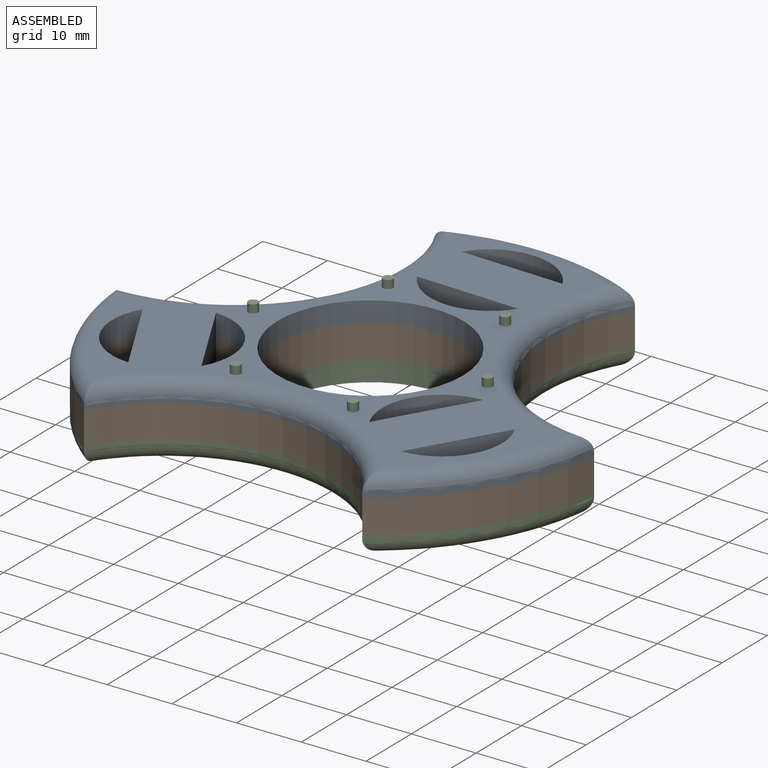
[diagram: assembled view]
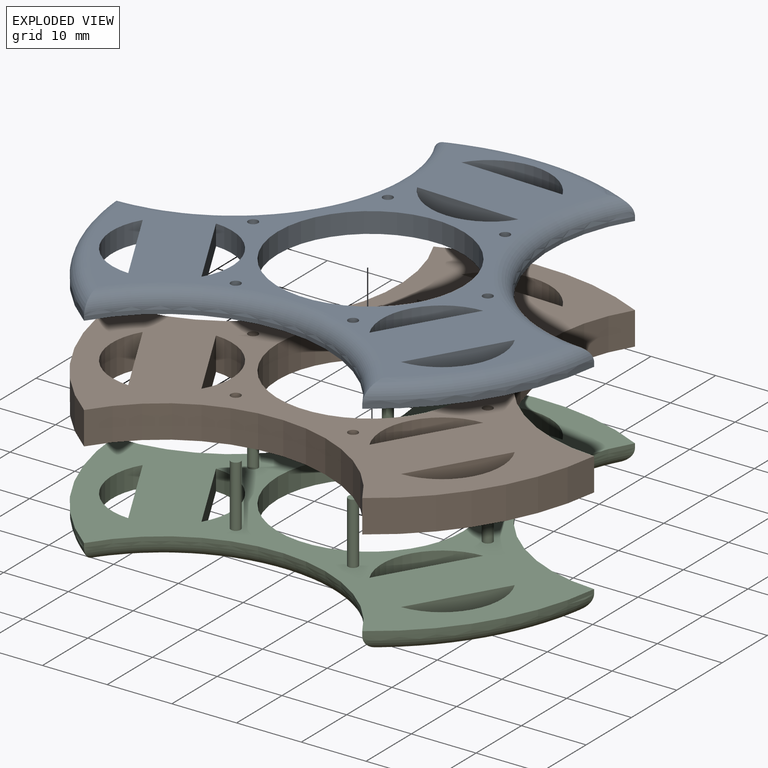
[diagram: exploded view]
GUIDED TOUR — MATED ASSEMBLY (Onshape document 9c266e8bfd4f920f56e7ce6f, AutoMate assembly 9c266e8bfd4f920f56e7ce6f_f0012defc9b9b102f75ae7d9_4b77db558a77bb1085bd2501_default)

This assembly has 3 components, labeled P0..P2 below (a component is one placed occurrence of a part; the same part can appear more than once), held together by 2 mates. A mate is a constraint between two components; its type names the relative motion it leaves free:
  PLANAR — leaves sliding in the plane through the listed point (normal = the listed direction) and rotation about that normal free.
Axis/direction vectors are unit vectors and 'through' points are millimeter coordinates, both in the assembly's world frame.

MATES
  1. PLANAR "Planar 2": P0 <-> P1, direction (0.000, 0.000, -1.000) through (-2.73, 70.20, 41.07) mm
  2. PLANAR "Planar 1": P1 <-> P2, direction (0.000, 0.000, -1.000) through (-2.73, 70.20, 35.99) mm

ASSEMBLY ORDER
  1. P1 — the base component [order heuristic]
  2. P0 [order heuristic]
  3. P2 [order heuristic]
Order-tag legend:
  [order heuristic] — this assembly is geometrically interlocked (no collision-free removal order exists), so components are listed in mate-graph order; insertion feasibility is not verified.

Of the 3 components, 1 carries the full construction recipe — the FeatureScript program that regenerates the part's solid from scratch; the rest are supplied as boundary geometry only.
Each toured component is shown spotlighted twice — in the assembled view, then in the exploded view, where a leader line traces a displaced component back to its assembled socket (saturated green if recipe-attached, orange if geometry-only; every other component desaturated gray) — followed by its recipe or geometry summary and the mates that hold it.
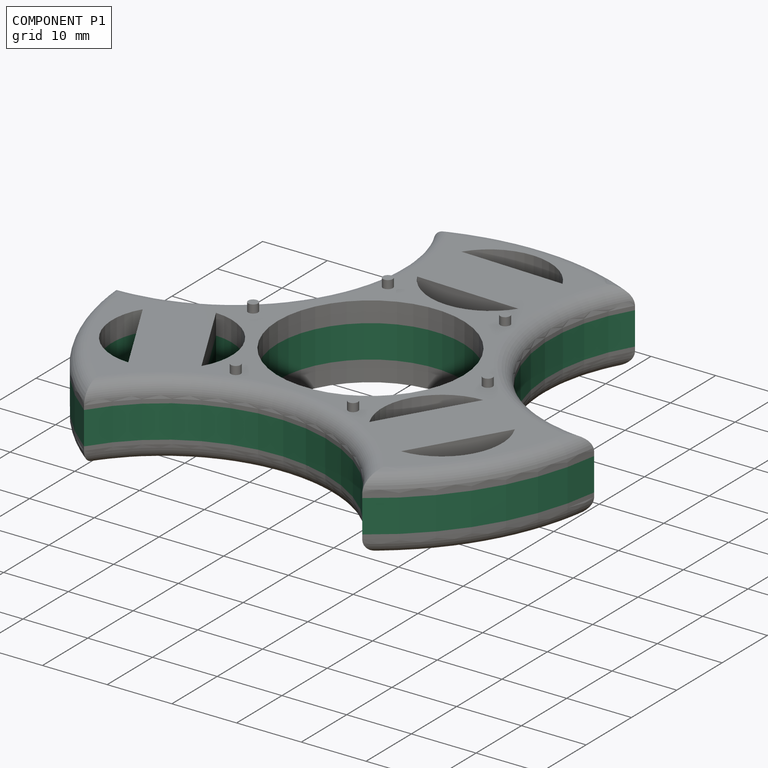
[diagram: component P1 — assembled]
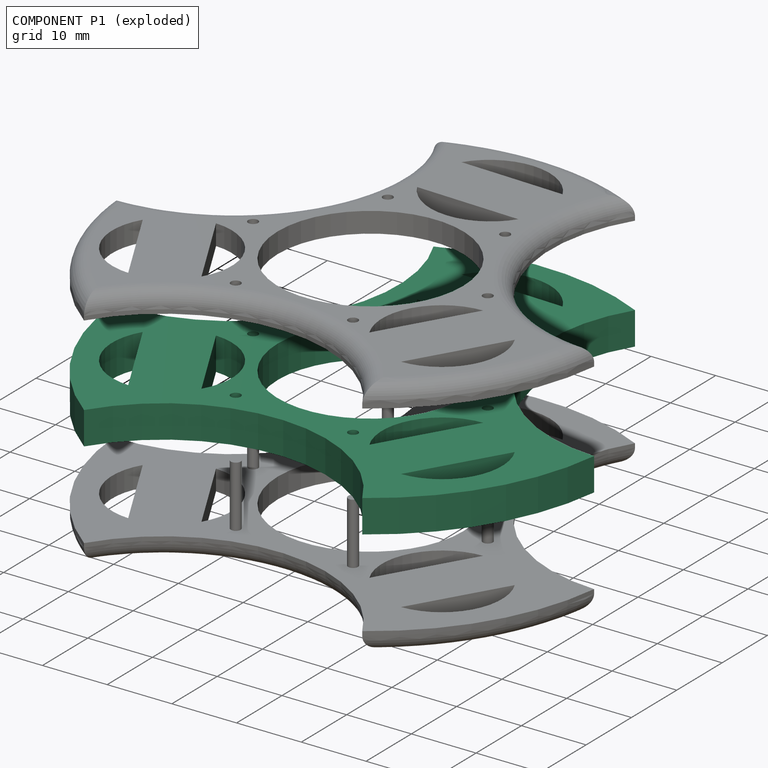
[diagram: component P1 — exploded]
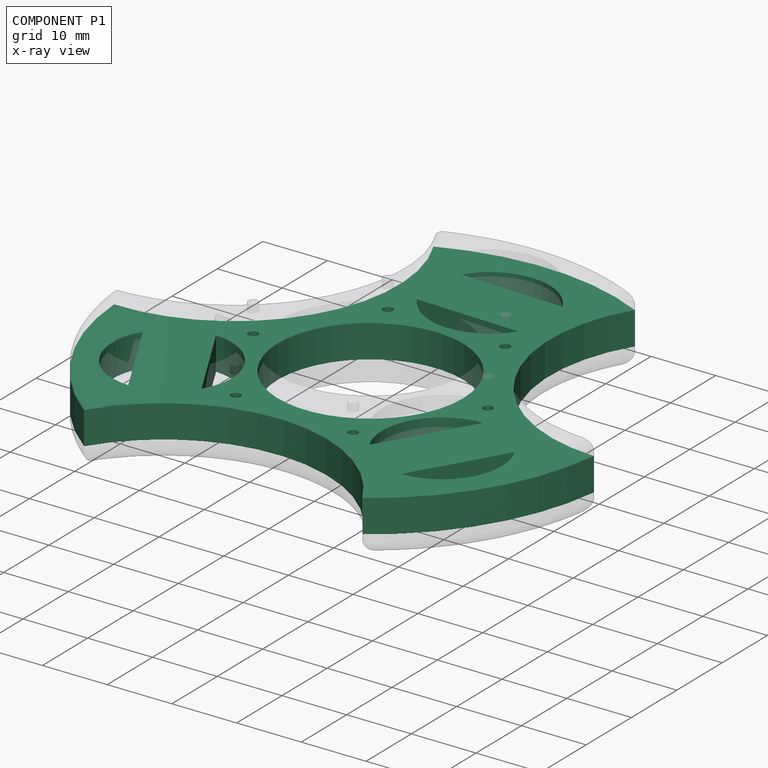
[diagram: component P1 — x-ray view]
COMPONENT P1 — recipe-attached (CADFS 00676873, mesh-verified: the recipe's output STEP matches this component's geometry to below the mesh-comparison resolution (tessellation chordal tolerance ~0.155 mm)).
Held by: PLANAR mate "Planar 2" to P0; PLANAR mate "Planar 1" to P2.
Construction recipe (FeatureScript — the CAD program that rebuilds this solid; sketch coordinates are in the units given by the * unit suffixes, e.g. mm):

FeatureScript 1511;
import(path : "onshape/std/geometry.fs", version : "1511.0");
import(path : "onshape/std/common.fs", version : "1511.0");
const mm = millimeter;
const VERTEX = EntityType.VERTEX;
const EDGE = EntityType.EDGE;
const FACE = EntityType.FACE;
const BODY = EntityType.BODY;
function v(x, y){return vector(x, y);}
function OD(order){return orderDisambiguation(order);}
function OSD(set){return originalSetDisambiguation(set);}
function TD(topology){return topologyDisambiguation(topology);}
function TDD(query){return trueDependencyDisambiguation(query);}
function sQuery(a, b, c) {return sketchEntityQuery(a, b, c);}

annotation { "Feature Type Name" : "Feature", "Feature Type Description" : "" }
export const myFeature = defineFeature(function(context is Context, id is Id, definition is map)
    precondition{}
    {
        {
            var Q0;
            Q0=qCreatedBy(makeId("Top.planeOp"),FACE);
            var sketch = newSketch(context, id + "F0", { "sketchPlane" : qUnion([Q0])});
            skCircle(sketch, "E0.cCircle", {"center": v(0, 0) * mm, "radius": 38.1 * mm});
            skPoint(sketch, "E0.0.midPoint", {"position": v(-32.38, 20.08) * mm});
            skLineSegment(sketch, "E1", {"start": v(-43.96, 1.34) * mm, "end": v(20.02, 35.73) * mm, "construction": true});
            skLineSegment(sketch, "E2", {"start": v(21.09, -38.3) * mm, "end": v(20.02, 35.73) * mm, "construction": true});
            skLineSegment(sketch, "E3", {"start": v(21.09, -38.3) * mm, "end": v(-30.3, -6.99) * mm, "construction": true});
            skLineSegment(sketch, "E4", {"start": v(-20.75, 38.8) * mm, "end": v(-22.08, -2.55) * mm, "construction": true});
            skLineSegment(sketch, "E5", {"start": v(43.57, -1.57) * mm, "end": v(-23.2, -37.35) * mm, "construction": true});
            skLineSegment(sketch, "E6", {"start": v(-20.75, 38.8) * mm, "end": v(43.57, -1.57) * mm, "construction": true});
            skCircle(sketch, "E7", {"center": v(0, 0) * mm, "radius": 14.31 * mm});
            skArc(sketch, "E8", {"start": v(-38.03, -2.27) * mm, "mid": v(-15.65, 9.72) * mm, "end": v(-14.83, 35.1) * mm});
            skArc(sketch, "E9", {"start": v(17, 34.1) * mm, "mid": v(16.22, 8.71) * mm, "end": v(37.81, -4.65) * mm});
            skArc(sketch, "E10", {"start": v(21, -31.8) * mm, "mid": v(-0.59, -18.4) * mm, "end": v(-22.97, -30.4) * mm});
            skLineSegment(sketch, "E11", {"start": v(20.6, -4.54) * mm, "end": v(12.56, -18.19) * mm});
            skLineSegment(sketch, "E12", {"start": v(28.9, -9.43) * mm, "end": v(20.87, -23.08) * mm});
            skLineSegment(sketch, "E13", {"start": v(-7.46, 20.96) * mm, "end": v(8.55, 20.42) * mm});
            skLineSegment(sketch, "E14", {"start": v(-7.15, 30.27) * mm, "end": v(8.87, 29.73) * mm});
            skLineSegment(sketch, "E15", {"start": v(-30.3, -6.99) * mm, "end": v(-43.96, 1.34) * mm, "construction": true});
            skLineSegment(sketch, "E16", {"start": v(-30.3, -6.99) * mm, "end": v(-30.3, -6.99) * mm});
            skLineSegment(sketch, "E17", {"start": v(-22.08, -2.55) * mm, "end": v(-22.08, -2.55) * mm});
            skLineSegment(sketch, "E18", {"start": v(-22.08, -2.55) * mm, "end": v(-23.2, -37.35) * mm, "construction": true});
            skArc(sketch, "E19", {"start": v(-30.3, -6.99) * mm, "mid": v(-30.51, -16.21) * mm, "end": v(-22.67, -21.08) * mm});
            skArc(sketch, "E20", {"start": v(-14.46, -16.64) * mm, "mid": v(-14.25, -7.42) * mm, "end": v(-22.08, -2.55) * mm});
            skLineSegment(sketch, "E21", {"start": v(-30.3, -6.99) * mm, "end": v(-22.67, -21.08) * mm});
            skLineSegment(sketch, "E22", {"start": v(-22.08, -2.55) * mm, "end": v(-14.46, -16.64) * mm});
            skArc(sketch, "E23", {"start": v(20.6, -4.54) * mm, "mid": v(12.76, -9.1) * mm, "end": v(12.56, -18.19) * mm});
            skArc(sketch, "E24", {"start": v(20.87, -23.08) * mm, "mid": v(28.7, -18.5) * mm, "end": v(28.9, -9.43) * mm});
            skArc(sketch, "E25", {"start": v(8.87, 29.73) * mm, "mid": v(1.01, 34.56) * mm, "end": v(-7.15, 30.27) * mm});
            skArc(sketch, "E26", {"start": v(-7.46, 20.96) * mm, "mid": v(0.4, 16.15) * mm, "end": v(8.55, 20.42) * mm});
            skCircle(sketch, "E27.cCircle", {"center": v(0, 0) * mm, "radius": 16.06 * mm, "construction": true});
            skPoint(sketch, "E27.0.midPoint", {"position": v(-14.16, -7.59) * mm});
            skCircle(sketch, "E28", {"center": v(-8.76, 16.35) * mm, "radius": 0.76 * mm});
            skCircle(sketch, "E29", {"center": v(9.78, 15.76) * mm, "radius": 0.76 * mm});
            skCircle(sketch, "E30", {"center": v(18.54, -0.59) * mm, "radius": 0.76 * mm});
            skCircle(sketch, "E31", {"center": v(8.76, -16.35) * mm, "radius": 0.76 * mm});
            skCircle(sketch, "E32", {"center": v(-9.78, -15.76) * mm, "radius": 0.76 * mm});
            skCircle(sketch, "E33", {"center": v(-18.54, 0.59) * mm, "radius": 0.76 * mm});
            skSolve(sketch);
        }
        {
            var Q0;
            Q0=makeQuery(id+"F0.imprint","IMPRINT",FACE,{"disambiguationData":[TD([[makeQuery(id+"F0.imprint","IMPRINT",EDGE,{"derivedFrom":sQuery(id+"F0.wireOp",EDGE,"E7")}),-1.0]])]});
            extrude(context, id + "F1", {"entities" : qUnion([Q0]), "depth" : 5.08 * mm, "offsetDistance" : 25.4 * mm});
        }
    });
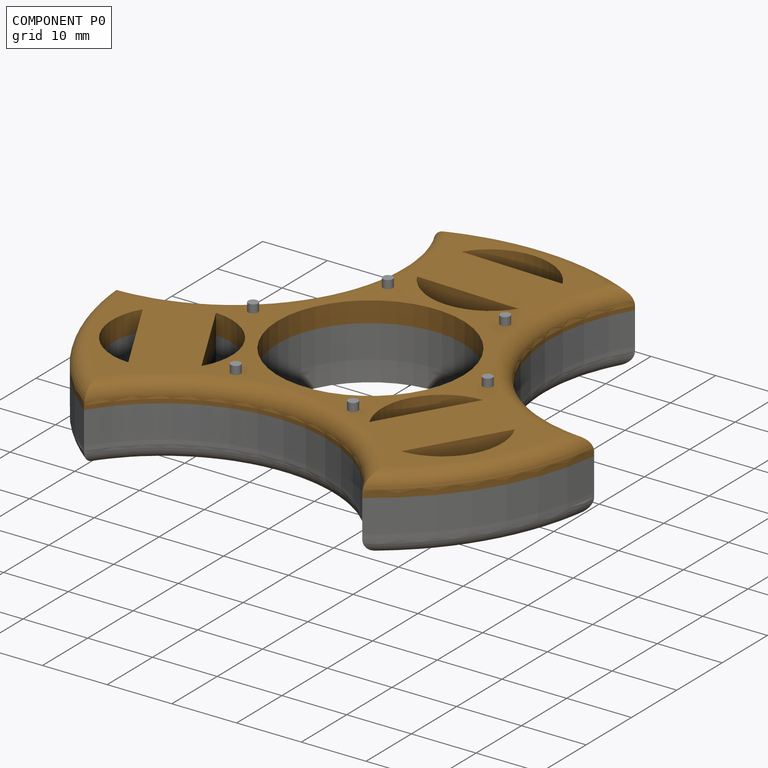
[diagram: component P0 — assembled]
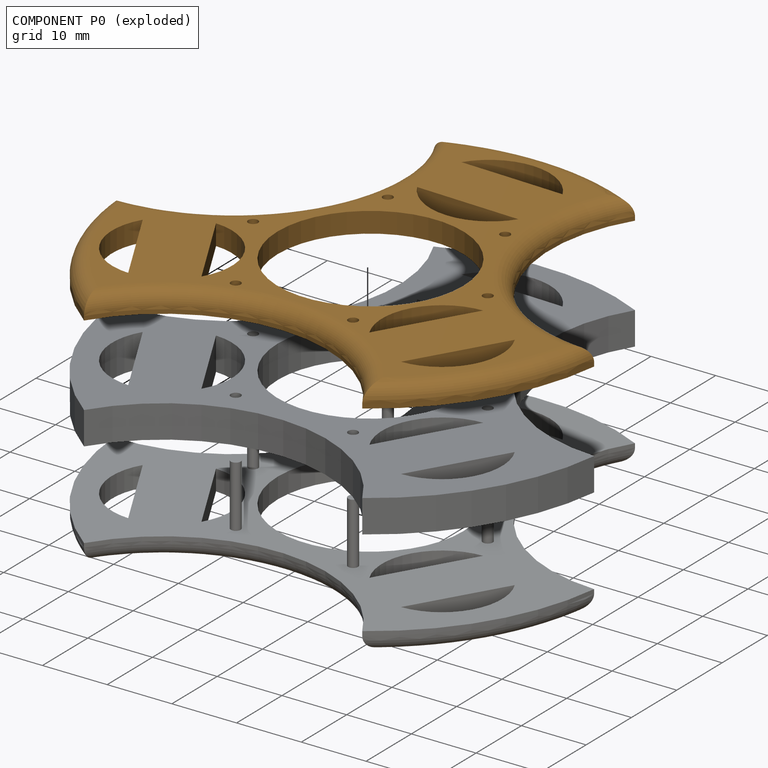
[diagram: component P0 — exploded]
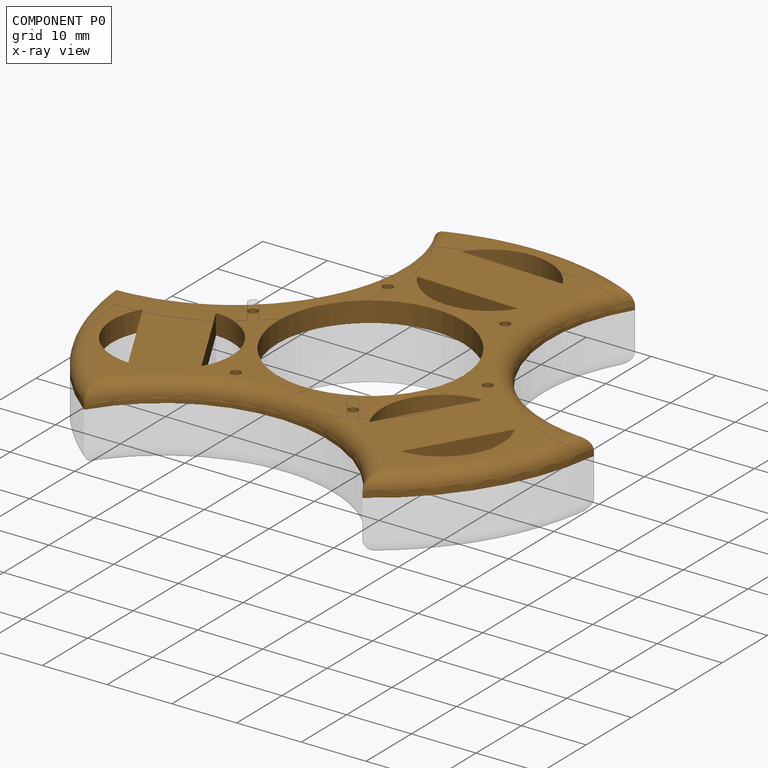
[diagram: component P0 — x-ray view]
COMPONENT P0 — geometry summary (no construction recipe available for this part):
  bounding box: 82.1 x 75.7 x 4.3 mm
  B-rep topology: 1 solid, 33 faces, 174 edges
  volume: 5315 mm^3 (20% of its bounding box)
Held by: PLANAR mate "Planar 2" to P1.
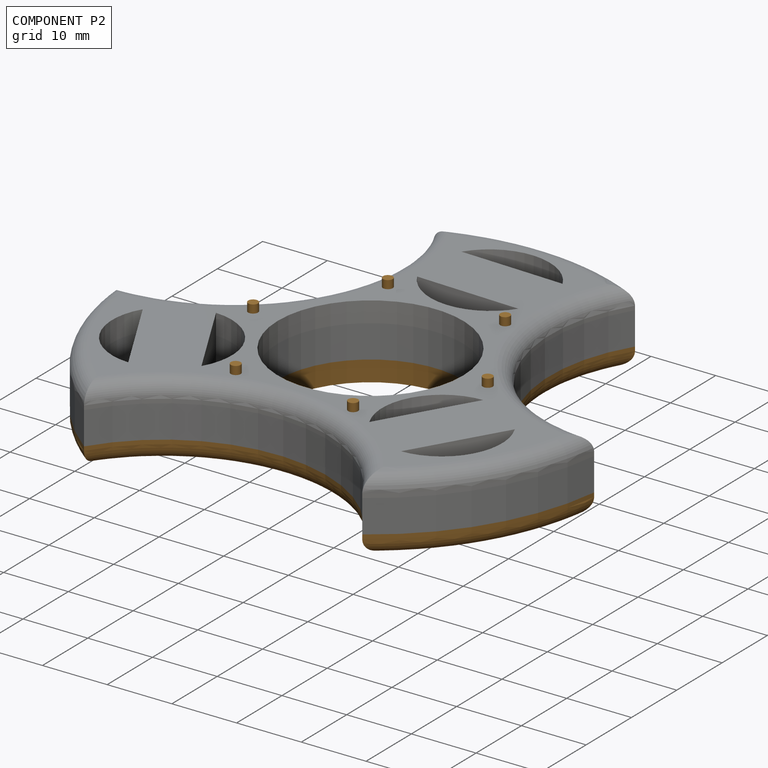
[diagram: component P2 — assembled]
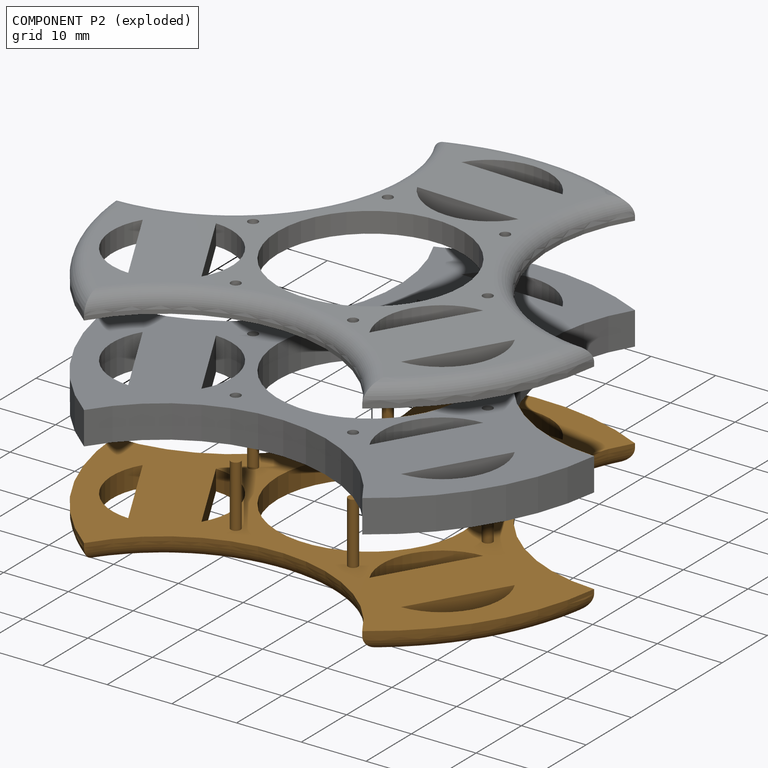
[diagram: component P2 — exploded]
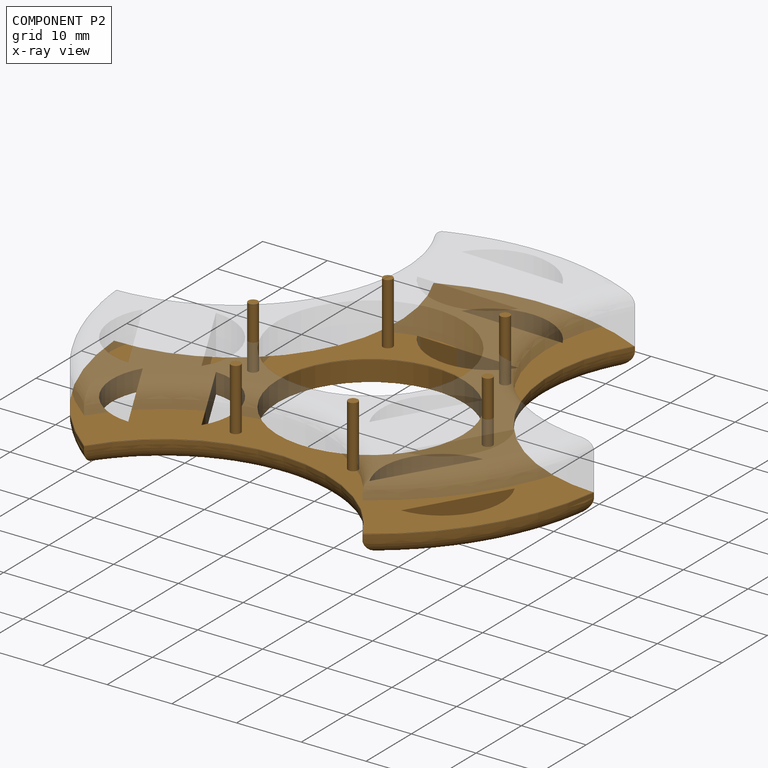
[diagram: component P2 — x-ray view]
COMPONENT P2 — geometry summary (no construction recipe available for this part):
  bounding box: 82.1 x 75.7 x 12.7 mm
  B-rep topology: 1 solid, 39 faces, 174 edges
  volume: 5454 mm^3 (7% of its bounding box)
Held by: PLANAR mate "Planar 1" to P1.
PROVENANCE & LICENSES
Assembly (occurrences, transforms, mates, per-part STEP geometry): AutoMate dataset, Zenodo record 7776208, CC0.
Construction recipes: CADFS (HuggingFace VladPyatov/CADFS, CC-BY-4.0, layered over the ABC dataset), FeatureScript reconstruction programs keyed by ABC model id.
Join: ABC meta listings map ABC model id -> Onshape documentId; within a shared document, parts are matched by geometric signature (bounding-box dims + volume at 0.1% relative tolerance, exact B-rep face/solid counts).
Verification: 1 of this assembly's 3 components carries a recipe attachment, and every attachment is mesh-verified: the CADFS STEP and the AutoMate member STEP were compared as meshes in their shared local frame (symmetric sampled-point-to-mesh distance); worst across the 1 attachment: below the mesh-comparison resolution (tessellation chordal tolerance ~0.155 mm) on a 103 mm part.
Renders: orthographic iso camera (az 35 / el 25); the floor grid conveys scale (grid pitch printed in each image; no ruler). In the exploded view each component is displaced by its stored offset vector: the offsets alone carry the explosion direction (mate normal/axis signs are not orientation cues and do not encode it), and separation distances are assigned per mate-chain, not proportionally to assembly-order depth.
